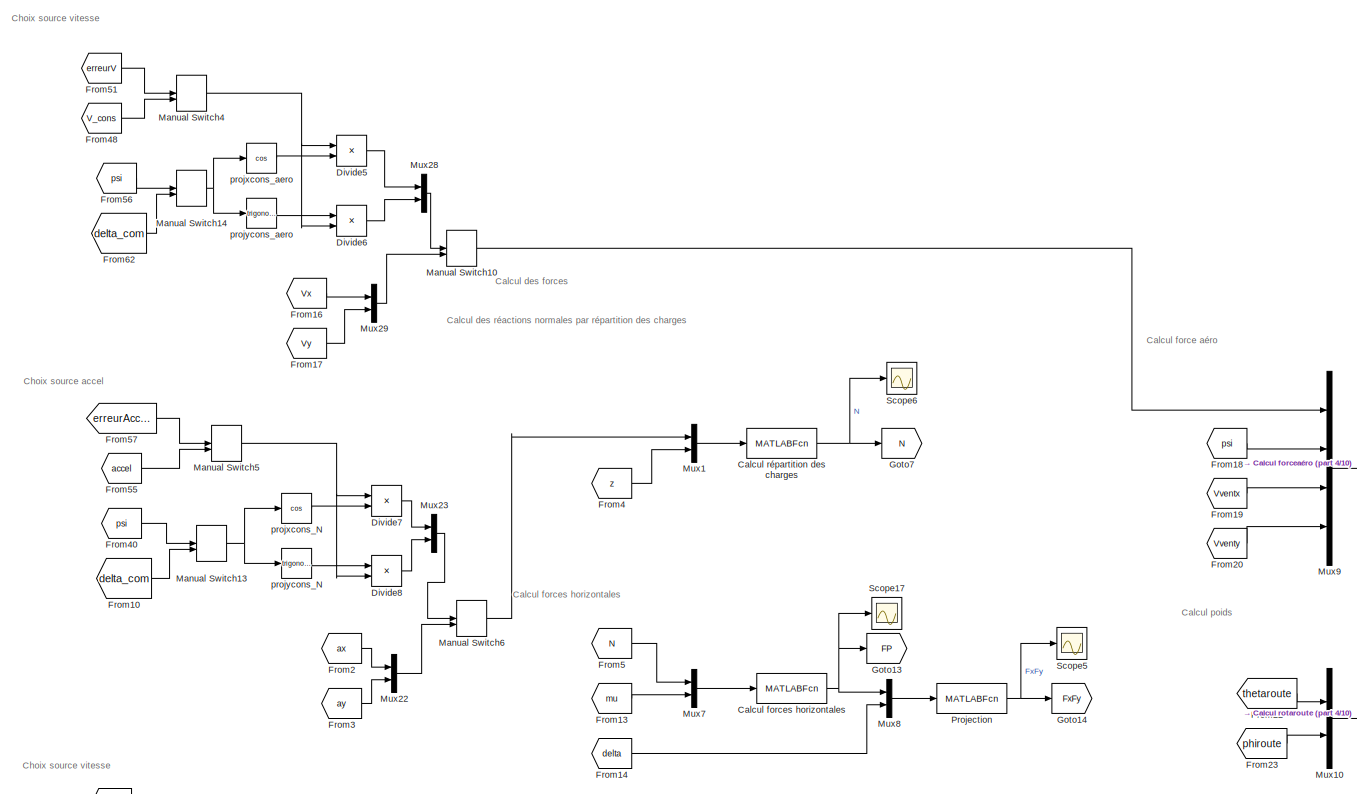
[diagram: root canvas - part 1/10, top right region]
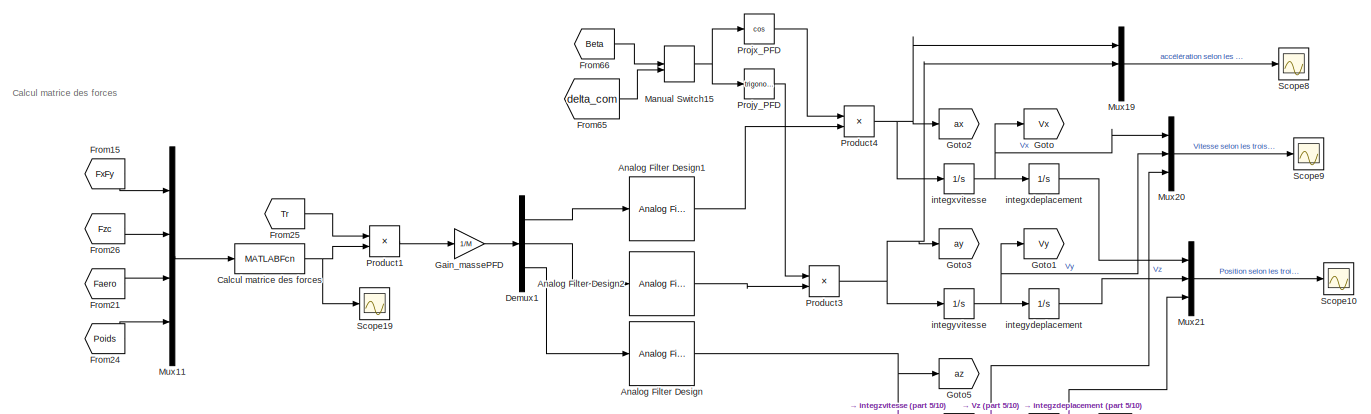
[diagram: root canvas - part 2/10, top left region]
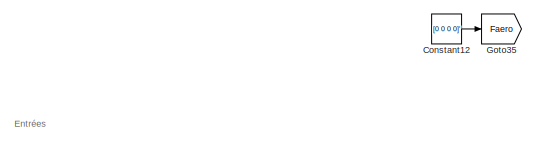
[diagram: root canvas - part 3/10, top left region]
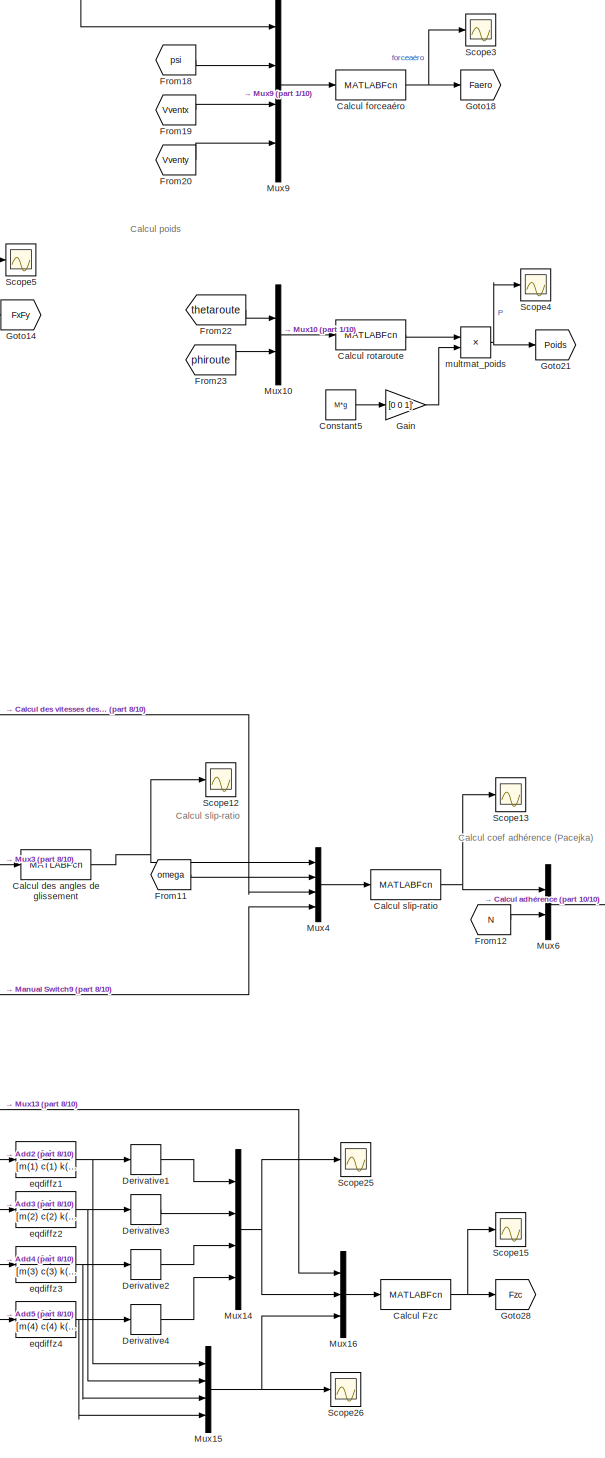
[diagram: root canvas - part 4/10, right side, full height]
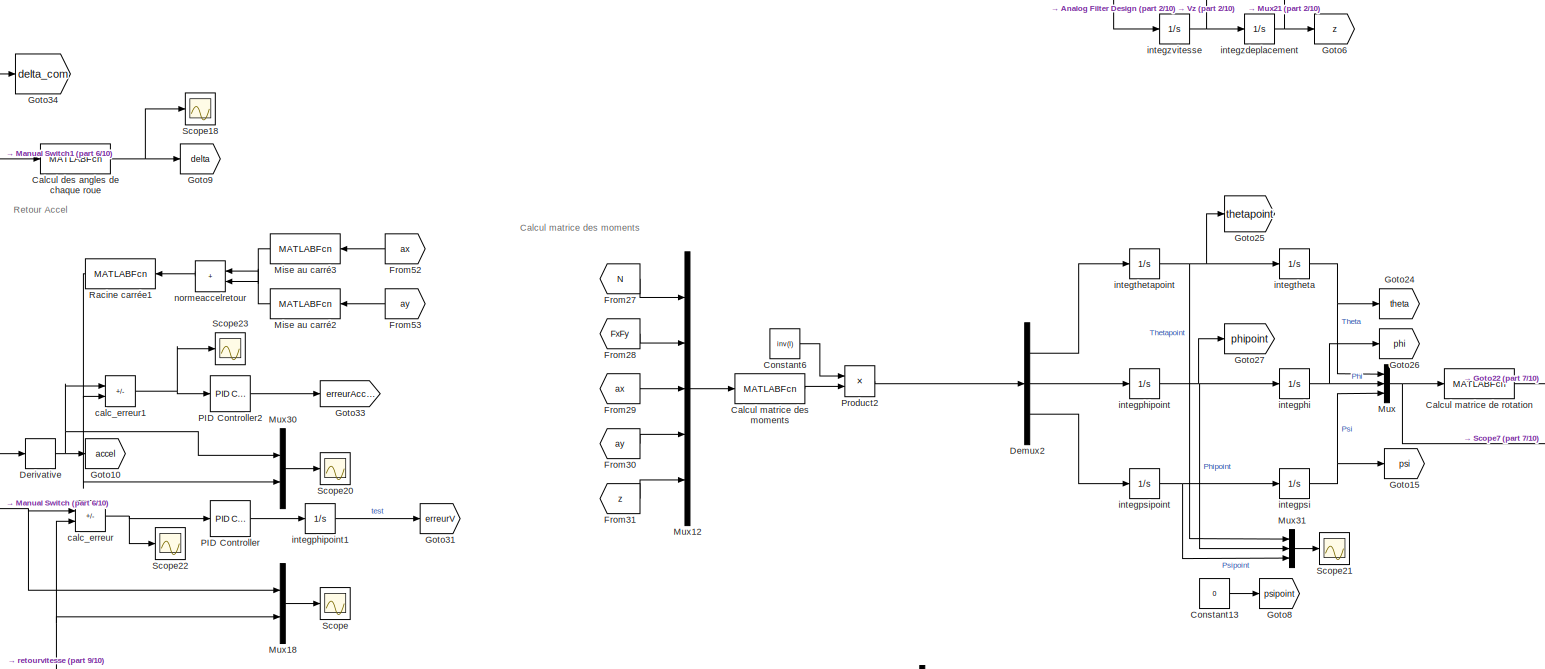
[diagram: root canvas - part 5/10, middle left region]
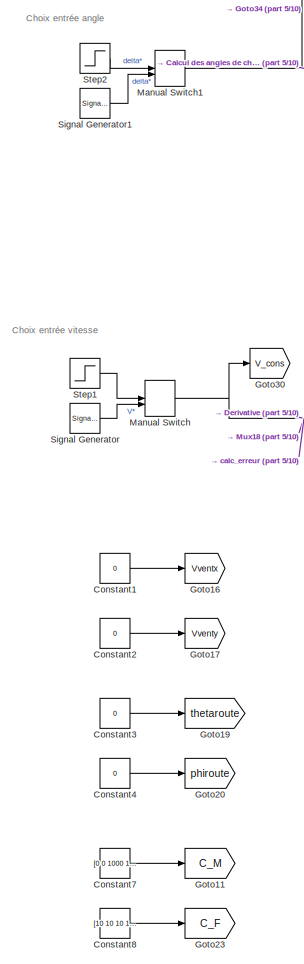
[diagram: root canvas - part 6/10, middle left region]
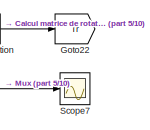
[diagram: root canvas - part 7/10, central region]
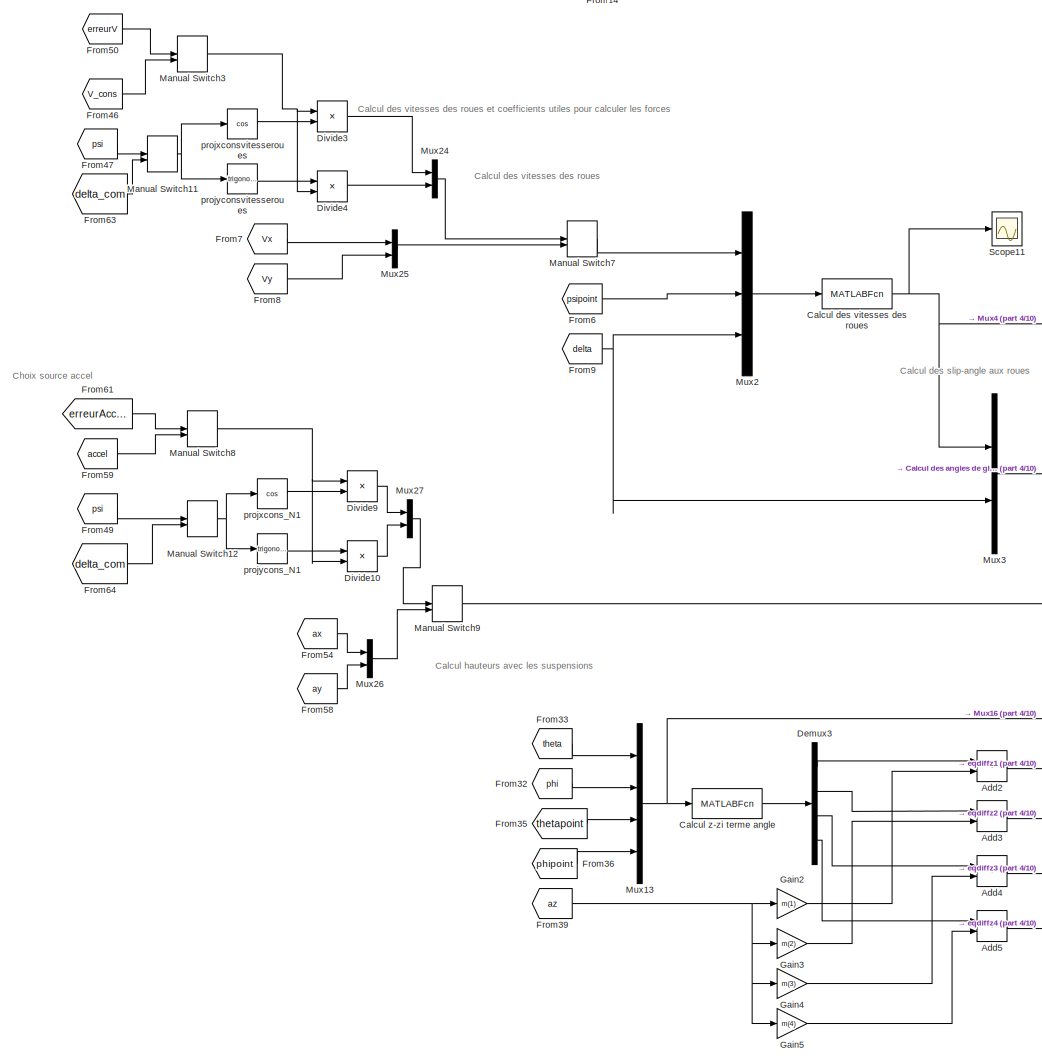
[diagram: root canvas - part 8/10, bottom center region]
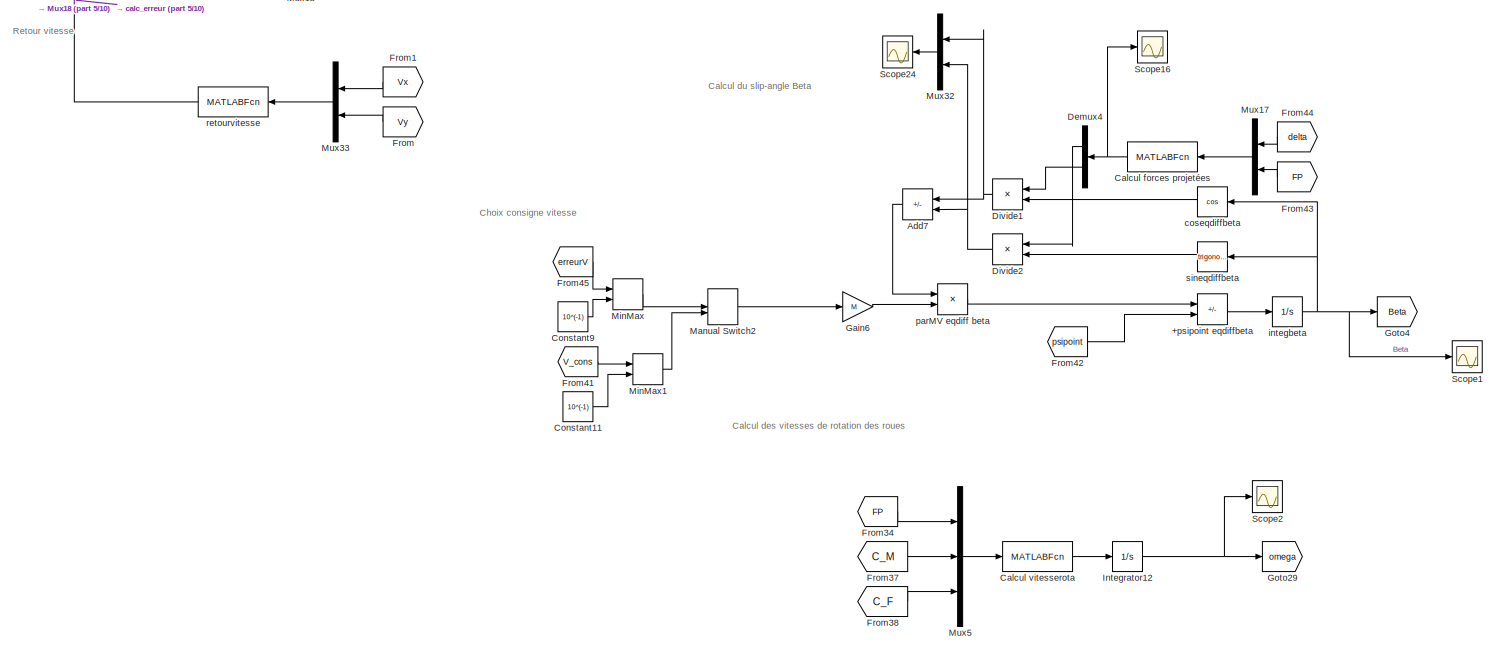
[diagram: root canvas - part 9/10, bottom left region]
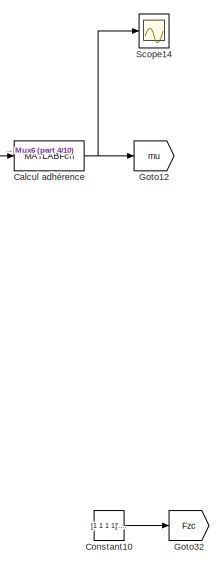
[diagram: root canvas - part 10/10, bottom right region]
MODEL slx_1732bdafeede
KIND model
CONFIG AbsTol = auto
CONFIG EnableMultiTasking = off
CONFIG FixedStep = auto
CONFIG MaxStep = auto
CONFIG MinStep = auto
CONFIG RelTol = 10e-8
CONFIG SampleTimeConstraint = Unconstrained
CONFIG SolverName = VariableStepAuto
CONFIG StartTime = 0.0
CONFIG StopTime = 20
BLOCK [Sum] +psipoint eqdiffbeta
  IconShape = rectangular
  Inputs = +-
  Ports = [2, 1]
BLOCK [Sum] Add2
  IconShape = rectangular
  Ports = [2, 1]
BLOCK [Sum] Add3
  IconShape = rectangular
  Ports = [2, 1]
BLOCK [Sum] Add4
  IconShape = rectangular
  Ports = [2, 1]
BLOCK [Sum] Add5
  IconShape = rectangular
  Ports = [2, 1]
BLOCK [Sum] Add7
  IconShape = rectangular
  Inputs = +-
  NameLocation = top
  Ports = [2, 1]
BLOCK [Reference] Analog Filter Design  REF=dsparch4/Analog
Filter Design
  Ports = [1, 1]
  SourceBlock = dsparch4/Analog\nFilter Design
  SourceProductBaseCode = DS
  SourceType = Analog Filter Design
BLOCK [Reference] Analog Filter Design1  REF=dsparch4/Analog
Filter Design
  Ports = [1, 1]
  SourceBlock = dsparch4/Analog\nFilter Design
  SourceProductBaseCode = DS
  SourceType = Analog Filter Design
BLOCK [Reference] Analog Filter Design2  REF=dsparch4/Analog
Filter Design
  Ports = [1, 1]
  SourceBlock = dsparch4/Analog\nFilter Design
  SourceProductBaseCode = DS
  SourceType = Analog Filter Design
BLOCK [MATLABFcn] Calcul Fzc
  MATLABFcn = calcul_Fcz(u(1),u(2),u(3),u(4),u(5),u(6),u(7),u(8),u(9),u(10),u(11),u(12),k(1),k(2),k(3),k(4),c(1),c(2),c(3),c(4),d_f,l_f,d_r,l_r)
  OutputDimensions = 4
  Ports = [1, 1]
BLOCK [MATLABFcn] Calcul adhérence
  MATLABFcn = calcul_adherence(u(1),u(2),u(3),u(4),u(5),u(6),u(7),u(8),Cte_1,Cte_2,Cte_3,Cte_4,u(9),u(10),u(11),u(12))
  OutputDimensions = 4*2
  Ports = [1, 1]
BLOCK [MATLABFcn] Calcul des angles de chaque roue
  MATLABFcn = calcul_delta(u,L,d_f)
  OutputDimensions = 4
  Ports = [1, 1]
BLOCK [MATLABFcn] Calcul des angles de glissement
  MATLABFcn = calcul_slipangle(u(1),u(2),u(3),u(4),u(5),u(6),u(7),u(8),u(9),u(10),u(11),u(12))
  OutputDimensions = 4
  Ports = [1, 1]
BLOCK [MATLABFcn] Calcul des vitesses des roues
  MATLABFcn = calcul_vitessesroues(u(1),u(2),u(3),u(4),u(5),u(6),u(7),d_f,d_r,l_f,l_r)
  OutputDimensions = 4*2
  Ports = [1, 1]
BLOCK [MATLABFcn] Calcul forceaéro
  Commented = on
  MATLABFcn = calcul_forceaero(u(1),u(2),u(3),u(4),u(5),C_x,A_L,A_S,rho)
  OutputDimensions = 3
  Ports = [1, 1]
BLOCK [MATLABFcn] Calcul forces horizontales
  MATLABFcn = calcul_forces(u(1),u(2),u(3),u(4),u(5),u(6),u(7),u(8),u(9),u(10),u(11),u(12))
  OutputDimensions = 4*2
  Ports = [1, 1]
BLOCK [MATLABFcn] Calcul forces projetées
  MATLABFcn = calcul_forcesprojetees(u(1),u(2),u(3),u(4),u(5),u(6),u(7),u(8),u(9),u(10),u(11),u(12))
  NameLocation = top
  Output1D = off
  OutputDimensions = 2
  Ports = [1, 1]
BLOCK [MATLABFcn] Calcul matrice de rotation
  MATLABFcn = calcul_rotation(u(1),u(2),u(3))
  Output1D = off
  OutputDimensions = [3 3]
  Ports = [1, 1]
BLOCK [MATLABFcn] Calcul matrice des forces
  MATLABFcn = calcul_matriceforces(u(1),u(2),u(3),u(4),u(5),u(6),u(7),u(8),u(9),u(10),u(11),u(12),u(13),u(14),u(15),u(16),u(17),u(18))
  Output1D = off
  OutputDimensions = [3 1]
  Ports = [1, 1]
BLOCK [MATLABFcn] Calcul matrice des moments
  MATLABFcn = calcul_matricemoments(u(1),u(2),u(3),u(4),u(5),u(6),u(7),u(8),u(9),u(10),u(11),u(12),u(13),u(14),u(15),d_f,d_r,M,h,l_f,l_r)
  Output1D = off
  OutputDimensions = [3 1]
  Ports = [1, 1]
BLOCK [MATLABFcn] Calcul rotaroute
  MATLABFcn = calcul_rotaroute(u(1),u(2))
  Output1D = off
  OutputDimensions = [3 3]
  Ports = [1, 1]
BLOCK [MATLABFcn] Calcul répartition des charges
  MATLABFcn = calcul_N(u(1),u(2),u(3),M,L,l_r,h,g)
  OutputDimensions = 4
  Ports = [1, 1]
BLOCK [MATLABFcn] Calcul slip-ratio
  MATLABFcn = calcul_lambda(u(1),u(2),u(3),u(4),R(1),R(2),R(3),R(4),u(5),u(6),u(7),u(8),u(9),u(11),u(13),u(15),u(17))
  OutputDimensions = 4*2
  Ports = [1, 1]
BLOCK [MATLABFcn] Calcul vitesserota
  MATLABFcn = calcul_omega(u(1),u(2),u(3),u(4),u(5),u(6),u(7),u(8),u(9),u(10),u(11),u(12),u(13),u(14),u(15),u(16),R(1),R(2),R(3),R(4),J(1),J(2),J(3),J(4))
  OutputDimensions = 4
  Ports = [1, 1]
BLOCK [MATLABFcn] Calcul z-zi terme angle
  MATLABFcn = calcul_secondterme(u(1),u(2),u(3),u(4),c(1),c(2),c(3),c(4),k(1),k(2),k(3),k(4),d_r,d_f,l_r,l_f)
  OutputDimensions = 4
  Ports = [1, 1]
BLOCK [Constant] Constant1
  Value = 0
BLOCK [Constant] Constant10
  Commented = on
  Value = [1 1 1 1]'.*1000
  VectorParams1D = off
BLOCK [Constant] Constant11
  Value = 10^(-1)
BLOCK [Constant] Constant12
  Value = [0 0 0 0]'
BLOCK [Constant] Constant13
  Value = 0
BLOCK [Constant] Constant2
  Value = 0
BLOCK [Constant] Constant3
  Value = 0
BLOCK [Constant] Constant4
  Value = 0
BLOCK [Constant] Constant5
  Value = M*g
  VectorParams1D = off
BLOCK [Constant] Constant6
  Value = inv(I)
BLOCK [Constant] Constant7
  Value = [0 0 1000 1000]
BLOCK [Constant] Constant8
  Value = [10 10 10 10]
BLOCK [Constant] Constant9
  Value = 10^(-1)
BLOCK [Demux] Demux1
  Outputs = 3
  Ports = [1, 3]
BLOCK [Demux] Demux2
  Outputs = 3
  Ports = [1, 3]
BLOCK [Demux] Demux3
  Ports = [1, 4]
BLOCK [Demux] Demux4
  NameLocation = top
  Outputs = 2
  Ports = [1, 2]
BLOCK [Derivative] Derivative
BLOCK [Derivative] Derivative1
BLOCK [Derivative] Derivative2
BLOCK [Derivative] Derivative3
BLOCK [Derivative] Derivative4
BLOCK [Product] Divide1
  Inputs = **
  NameLocation = top
  Ports = [2, 1]
BLOCK [Product] Divide10
  Inputs = **
  Ports = [2, 1]
BLOCK [Product] Divide2
  Inputs = **
  NameLocation = top
  Ports = [2, 1]
BLOCK [Product] Divide3
  Inputs = **
  Ports = [2, 1]
BLOCK [Product] Divide4
  Inputs = **
  Ports = [2, 1]
BLOCK [Product] Divide5
  Commented = on
  Inputs = **
  Ports = [2, 1]
BLOCK [Product] Divide6
  Commented = on
  Inputs = **
  Ports = [2, 1]
BLOCK [Product] Divide7
  Inputs = **
  Ports = [2, 1]
BLOCK [Product] Divide8
  Inputs = **
  Ports = [2, 1]
BLOCK [Product] Divide9
  Inputs = **
  Ports = [2, 1]
BLOCK [From] From
  GotoTag = Vy
  NameLocation = top
BLOCK [From] From1
  GotoTag = Vx
  NameLocation = top
BLOCK [From] From10
  GotoTag = delta_com
BLOCK [From] From11
  GotoTag = omega
BLOCK [From] From12
  GotoTag = N
BLOCK [From] From13
  GotoTag = mu
BLOCK [From] From14
  GotoTag = delta
BLOCK [From] From15
  GotoTag = FxFy
BLOCK [From] From16
  Commented = on
  GotoTag = Vx
BLOCK [From] From17
  Commented = on
  GotoTag = Vy
BLOCK [From] From18
  Commented = on
  GotoTag = psi
BLOCK [From] From19
  Commented = on
  GotoTag = Vventx
BLOCK [From] From2
  GotoTag = ax
BLOCK [From] From20
  Commented = on
  GotoTag = Vventy
BLOCK [From] From21
  GotoTag = Faero
BLOCK [From] From22
  GotoTag = thetaroute
BLOCK [From] From23
  GotoTag = phiroute
BLOCK [From] From24
  GotoTag = Poids
BLOCK [From] From25
  GotoTag = Tr
BLOCK [From] From26
  GotoTag = Fzc
BLOCK [From] From27
  GotoTag = N
BLOCK [From] From28
  GotoTag = FxFy
BLOCK [From] From29
  GotoTag = ax
BLOCK [From] From3
  GotoTag = ay
BLOCK [From] From30
  GotoTag = ay
BLOCK [From] From31
  GotoTag = z
BLOCK [From] From32
  GotoTag = phi
BLOCK [From] From33
  GotoTag = theta
BLOCK [From] From34
  GotoTag = FP
BLOCK [From] From35
  GotoTag = thetapoint
BLOCK [From] From36
  GotoTag = phipoint
BLOCK [From] From37
  GotoTag = C_M
BLOCK [From] From38
  GotoTag = C_F
BLOCK [From] From39
  GotoTag = az
BLOCK [From] From4
  GotoTag = z
BLOCK [From] From40
  GotoTag = psi
BLOCK [From] From41
  GotoTag = V_cons
BLOCK [From] From42
  GotoTag = psipoint
BLOCK [From] From43
  GotoTag = FP
  NameLocation = top
BLOCK [From] From44
  GotoTag = delta
  NameLocation = top
BLOCK [From] From45
  GotoTag = erreurV
BLOCK [From] From46
  GotoTag = V_cons
BLOCK [From] From47
  GotoTag = psi
BLOCK [From] From48
  Commented = on
  GotoTag = V_cons
BLOCK [From] From49
  GotoTag = psi
BLOCK [From] From5
  GotoTag = N
BLOCK [From] From50
  GotoTag = erreurV
BLOCK [From] From51
  Commented = on
  GotoTag = erreurV
BLOCK [From] From52
  GotoTag = ax
  NameLocation = top
BLOCK [From] From53
  GotoTag = ay
  NameLocation = top
BLOCK [From] From54
  GotoTag = ax
BLOCK [From] From55
  GotoTag = accel
BLOCK [From] From56
  Commented = on
  GotoTag = psi
BLOCK [From] From57
  GotoTag = erreurAccel
BLOCK [From] From58
  GotoTag = ay
BLOCK [From] From59
  GotoTag = accel
BLOCK [From] From6
  GotoTag = psipoint
BLOCK [From] From61
  GotoTag = erreurAccel
BLOCK [From] From62
  Commented = on
  GotoTag = delta_com
BLOCK [From] From63
  GotoTag = delta_com
BLOCK [From] From64
  GotoTag = delta_com
BLOCK [From] From65
  GotoTag = delta_com
BLOCK [From] From66
  GotoTag = Beta
BLOCK [From] From7
  GotoTag = Vx
BLOCK [From] From8
  GotoTag = Vy
BLOCK [From] From9
  GotoTag = delta
BLOCK [Gain] Gain
  Gain = [0 0 1]'
BLOCK [Gain] Gain2
  Gain = m(1)
BLOCK [Gain] Gain3
  Gain = m(2)
BLOCK [Gain] Gain4
  Gain = m(3)
BLOCK [Gain] Gain5
  Gain = m(4)
BLOCK [Gain] Gain6
  Gain = M
BLOCK [Gain] Gain_massePFD
  Gain = 1/M
BLOCK [Goto] Goto
  GotoTag = Vx
BLOCK [Goto] Goto1
  GotoTag = Vy
BLOCK [Goto] Goto10
  GotoTag = accel
BLOCK [Goto] Goto11
  GotoTag = C_M
BLOCK [Goto] Goto12
  GotoTag = mu
BLOCK [Goto] Goto13
  GotoTag = FP
BLOCK [Goto] Goto14
  GotoTag = FxFy
BLOCK [Goto] Goto15
  GotoTag = psi
BLOCK [Goto] Goto16
  GotoTag = Vventx
BLOCK [Goto] Goto17
  GotoTag = Vventy
BLOCK [Goto] Goto18
  Commented = on
  GotoTag = Faero
BLOCK [Goto] Goto19
  GotoTag = thetaroute
BLOCK [Goto] Goto2
  GotoTag = ax
BLOCK [Goto] Goto20
  GotoTag = phiroute
BLOCK [Goto] Goto21
  GotoTag = Poids
BLOCK [Goto] Goto22
  GotoTag = Tr
BLOCK [Goto] Goto23
  GotoTag = C_F
BLOCK [Goto] Goto24
  GotoTag = theta
BLOCK [Goto] Goto25
  GotoTag = thetapoint
BLOCK [Goto] Goto26
  GotoTag = phi
BLOCK [Goto] Goto27
  GotoTag = phipoint
BLOCK [Goto] Goto28
  GotoTag = Fzc
BLOCK [Goto] Goto29
  GotoTag = omega
BLOCK [Goto] Goto3
  GotoTag = ay
BLOCK [Goto] Goto30
  GotoTag = V_cons
BLOCK [Goto] Goto31
  GotoTag = erreurV
BLOCK [Goto] Goto32
  Commented = on
  GotoTag = Fzc
BLOCK [Goto] Goto33
  GotoTag = erreurAccel
BLOCK [Goto] Goto34
  GotoTag = delta_com
BLOCK [Goto] Goto35
  GotoTag = Faero
BLOCK [Goto] Goto4
  GotoTag = Beta
BLOCK [Goto] Goto5
  GotoTag = az
BLOCK [Goto] Goto6
  GotoTag = z
BLOCK [Goto] Goto7
  GotoTag = N
BLOCK [Goto] Goto8
  GotoTag = psipoint
BLOCK [Goto] Goto9
  GotoTag = delta
BLOCK [Integrator] Integrator12
  Ports = [1, 1]
BLOCK [ManualSwitch] Manual Switch
BLOCK [ManualSwitch] Manual Switch1
BLOCK [ManualSwitch] Manual Switch10
  Commented = on
BLOCK [ManualSwitch] Manual Switch11
BLOCK [ManualSwitch] Manual Switch12
BLOCK [ManualSwitch] Manual Switch13
BLOCK [ManualSwitch] Manual Switch14
  Commented = on
BLOCK [ManualSwitch] Manual Switch15
  CurrentSetting = 0
BLOCK [ManualSwitch] Manual Switch2
BLOCK [ManualSwitch] Manual Switch3
BLOCK [ManualSwitch] Manual Switch4
  Commented = on
BLOCK [ManualSwitch] Manual Switch5
BLOCK [ManualSwitch] Manual Switch6
BLOCK [ManualSwitch] Manual Switch7
BLOCK [ManualSwitch] Manual Switch8
BLOCK [ManualSwitch] Manual Switch9
BLOCK [MinMax] MinMax
  Function = max
  Inputs = 2
  Ports = [2, 1]
BLOCK [MinMax] MinMax1
  Function = max
  Inputs = 2
  Ports = [2, 1]
BLOCK [MATLABFcn] Mise au carré2
  MATLABFcn = u^2
  NameLocation = top
  Ports = [1, 1]
BLOCK [MATLABFcn] Mise au carré3
  MATLABFcn = u^2
  NameLocation = top
  Ports = [1, 1]
BLOCK [Mux] Mux
  DisplayOption = bar
  Inputs = 3
  Ports = [3, 1]
BLOCK [Mux] Mux1
  DisplayOption = bar
  Inputs = 2
  Ports = [2, 1]
BLOCK [Mux] Mux10
  DisplayOption = bar
  Inputs = 2
  Ports = [2, 1]
BLOCK [Mux] Mux11
  DisplayOption = bar
  Ports = [4, 1]
BLOCK [Mux] Mux12
  DisplayOption = bar
  Inputs = 5
  Ports = [5, 1]
BLOCK [Mux] Mux13
  DisplayOption = bar
  Ports = [4, 1]
BLOCK [Mux] Mux14
  DisplayOption = bar
  Ports = [4, 1]
BLOCK [Mux] Mux15
  DisplayOption = bar
  Ports = [4, 1]
BLOCK [Mux] Mux16
  DisplayOption = bar
  Inputs = 3
  Ports = [3, 1]
BLOCK [Mux] Mux17
  DisplayOption = bar
  Inputs = 2
  NameLocation = top
  Ports = [2, 1]
BLOCK [Mux] Mux18
  DisplayOption = bar
  Inputs = 2
  Ports = [2, 1]
BLOCK [Mux] Mux19
  DisplayOption = bar
  Inputs = 3
  Ports = [3, 1]
BLOCK [Mux] Mux2
  DisplayOption = bar
  Inputs = 3
  Ports = [3, 1]
BLOCK [Mux] Mux20
  DisplayOption = bar
  Inputs = 3
  Ports = [3, 1]
BLOCK [Mux] Mux21
  DisplayOption = bar
  Inputs = 3
  Ports = [3, 1]
BLOCK [Mux] Mux22
  DisplayOption = bar
  Inputs = 2
  Ports = [2, 1]
BLOCK [Mux] Mux23
  DisplayOption = bar
  Inputs = 2
  Ports = [2, 1]
BLOCK [Mux] Mux24
  DisplayOption = bar
  Inputs = 2
  Ports = [2, 1]
BLOCK [Mux] Mux25
  DisplayOption = bar
  Inputs = 2
  Ports = [2, 1]
BLOCK [Mux] Mux26
  DisplayOption = bar
  Inputs = 2
  Ports = [2, 1]
BLOCK [Mux] Mux27
  DisplayOption = bar
  Inputs = 2
  Ports = [2, 1]
BLOCK [Mux] Mux28
  Commented = on
  DisplayOption = bar
  Inputs = 2
  Ports = [2, 1]
BLOCK [Mux] Mux29
  Commented = on
  DisplayOption = bar
  Inputs = 2
  Ports = [2, 1]
BLOCK [Mux] Mux3
  DisplayOption = bar
  Inputs = 2
  Ports = [2, 1]
BLOCK [Mux] Mux30
  DisplayOption = bar
  Inputs = 2
  Ports = [2, 1]
BLOCK [Mux] Mux31
  DisplayOption = bar
  Inputs = 3
  Ports = [3, 1]
BLOCK [Mux] Mux32
  DisplayOption = bar
  Inputs = 2
  NameLocation = top
  Ports = [2, 1]
BLOCK [Mux] Mux33
  DisplayOption = bar
  Inputs = 2
  NameLocation = top
  Ports = [2, 1]
BLOCK [Mux] Mux4
  DisplayOption = bar
  Ports = [4, 1]
BLOCK [Mux] Mux5
  DisplayOption = bar
  Inputs = 3
  Ports = [3, 1]
BLOCK [Mux] Mux6
  DisplayOption = bar
  Inputs = 2
  Ports = [2, 1]
BLOCK [Mux] Mux7
  DisplayOption = bar
  Inputs = 2
  Ports = [2, 1]
BLOCK [Mux] Mux8
  DisplayOption = bar
  Inputs = 2
  Ports = [2, 1]
BLOCK [Mux] Mux9
  Commented = on
  DisplayOption = bar
  Ports = [4, 1]
BLOCK [Reference] PID Controller  REF=slpidlib/PID Controller
  Ports = [1, 1]
  SourceBlock = slpidlib/PID Controller
  SourceProductBaseCode = SL
  SourceType = PID 1dof
BLOCK [Reference] PID Controller2  REF=slpidlib/PID Controller
  Commented = through
  Ports = [1, 1]
  SourceBlock = slpidlib/PID Controller
  SourceProductBaseCode = SL
  SourceType = PID 1dof
BLOCK [Product] Product1
  Multiplication = Matrix(*)
  Ports = [2, 1]
BLOCK [Product] Product2
  Multiplication = Matrix(*)
  Ports = [2, 1]
BLOCK [Product] Product3
  Ports = [2, 1]
BLOCK [Product] Product4
  Ports = [2, 1]
BLOCK [MATLABFcn] Projection
  MATLABFcn = projection(u(1),u(2),u(3),u(4),u(5),u(6),u(7),u(8),u(9),u(10),u(11),u(12))
  OutputDimensions = 8
  Ports = [1, 1]
BLOCK [Trigonometry] Projx_PFD
  Operator = cos
  Ports = [1, 1]
BLOCK [Trigonometry] Projy_PFD
  Ports = [1, 1]
BLOCK [MATLABFcn] Racine carrée1
  MATLABFcn = u^(0.5)
  NameLocation = top
  Ports = [1, 1]
BLOCK [Scope] Scope
  Floating = off
  NumInputPorts = 1
  Ports = [1]
  ScopeSpecificationString = Simulink.scopes.TimeScopeBlockCfg('CurrentConfiguration', extmgr.ConfigurationSet(extmgr.Configuration('Core','General UI',true),extmgr.Configuration('Core','Source UI',true),extmgr.Configuration('Sources','WiredSimulink',true),extmgr.Configuration('Visuals','Time Domain',true,'SerializedDisplays',{struct('MinYLimReal','-0.75331','MaxYLimReal','6.42745','YLabelReal','','MinYLimMag','0.00000','MaxY...<+1395ch>
BLOCK [Scope] Scope1
  Floating = off
  NumInputPorts = 1
  Ports = [1]
  ScopeSpecificationString = Simulink.scopes.TimeScopeBlockCfg('CurrentConfiguration', extmgr.ConfigurationSet(extmgr.Configuration('Core','General UI',true),extmgr.Configuration('Core','Source UI',true),extmgr.Configuration('Sources','WiredSimulink',true,'DataLoggingVariableName','ScopeData1'),extmgr.Configuration('Visuals','Time Domain',true,'SerializedDisplays',{struct('MinYLimReal','-0.00016','MaxYLimReal','0.00142','YLab...<+1409ch>
BLOCK [Scope] Scope10
  Floating = off
  NumInputPorts = 1
  Ports = [1]
  ScopeSpecificationString = Simulink.scopes.TimeScopeBlockCfg('CurrentConfiguration', extmgr.ConfigurationSet(extmgr.Configuration('Core','General UI',true),extmgr.Configuration('Core','Source UI',true),extmgr.Configuration('Sources','WiredSimulink',true,'DataLoggingVariableName','ScopeData10'),extmgr.Configuration('Visuals','Time Domain',true,'SerializedDisplays',{struct('MinYLimReal','-26.867','MaxYLimReal','30.65988','YLa...<+1532ch>
BLOCK [Scope] Scope11
  Floating = off
  NumInputPorts = 1
  Ports = [1]
  ScopeSpecificationString = Simulink.scopes.TimeScopeBlockCfg('CurrentConfiguration', extmgr.ConfigurationSet(extmgr.Configuration('Core','General UI',true),extmgr.Configuration('Core','Source UI',true),extmgr.Configuration('Sources','WiredSimulink',true,'DataLoggingVariableName','ScopeData11'),extmgr.Configuration('Visuals','Time Domain',true,'SerializedDisplays',{struct('MinYLimReal','-69724.66594','MaxYLimReal','627521.99...<+1927ch>
BLOCK [Scope] Scope12
  Floating = off
  NumInputPorts = 1
  Ports = [1]
  ScopeSpecificationString = Simulink.scopes.TimeScopeBlockCfg('CurrentConfiguration', extmgr.ConfigurationSet(extmgr.Configuration('Core','General UI',true),extmgr.Configuration('Core','Source UI',true),extmgr.Configuration('Sources','WiredSimulink',true,'DataLoggingVariableName','ScopeData12'),extmgr.Configuration('Visuals','Time Domain',true,'SerializedDisplays',{struct('MinYLimReal','-3.92696','MaxYLimReal','3.92677','YLa...<+1665ch>
BLOCK [Scope] Scope13
  Floating = off
  NumInputPorts = 1
  Ports = [1]
  ScopeSpecificationString = Simulink.scopes.TimeScopeBlockCfg('CurrentConfiguration', extmgr.ConfigurationSet(extmgr.Configuration('Core','General UI',true),extmgr.Configuration('Core','Source UI',true),extmgr.Configuration('Sources','WiredSimulink',true,'DataLoggingVariableName','ScopeData13'),extmgr.Configuration('Visuals','Time Domain',true,'SerializedDisplays',{struct('MinYLimReal','-133.81601','MaxYLimReal','118.5939','...<+1799ch>
BLOCK [Scope] Scope14
  Floating = off
  NumInputPorts = 1
  Ports = [1]
  ScopeSpecificationString = Simulink.scopes.TimeScopeBlockCfg('CurrentConfiguration', extmgr.ConfigurationSet(extmgr.Configuration('Core','General UI',true),extmgr.Configuration('Core','Source UI',true),extmgr.Configuration('Sources','WiredSimulink',true,'DataLoggingVariableName','ScopeData14'),extmgr.Configuration('Visuals','Time Domain',true,'SerializedDisplays',{struct('MinYLimReal','0.53485','MaxYLimReal','1.00127','YLab...<+1750ch>
BLOCK [Scope] Scope15
  Floating = off
  NumInputPorts = 1
  Ports = [1]
  ScopeSpecificationString = Simulink.scopes.TimeScopeBlockCfg('CurrentConfiguration', extmgr.ConfigurationSet(extmgr.Configuration('Core','General UI',true),extmgr.Configuration('Core','Source UI',true),extmgr.Configuration('Sources','WiredSimulink',true,'DataLoggingVariableName','ScopeData15'),extmgr.Configuration('Visuals','Time Domain',true,'SerializedDisplays',{struct('MinYLimReal','-68741.32697','MaxYLimReal','79915.773...<+1677ch>
BLOCK [Scope] Scope16
  Floating = off
  NumInputPorts = 1
  Ports = [1]
  ScopeSpecificationString = Simulink.scopes.TimeScopeBlockCfg('CurrentConfiguration', extmgr.ConfigurationSet(extmgr.Configuration('Core','General UI',true),extmgr.Configuration('Core','Source UI',true),extmgr.Configuration('Sources','WiredSimulink',true,'DataLoggingVariableName','ScopeData16'),extmgr.Configuration('Visuals','Time Domain',true,'SerializedDisplays',{struct('MinYLimReal','5116.57954','MaxYLimReal','16805.35457...<+1555ch>
BLOCK [Scope] Scope17
  Floating = off
  NumInputPorts = 1
  Ports = [1]
  ScopeSpecificationString = Simulink.scopes.TimeScopeBlockCfg('CurrentConfiguration', extmgr.ConfigurationSet(extmgr.Configuration('Core','General UI',true),extmgr.Configuration('Core','Source UI',true),extmgr.Configuration('Sources','WiredSimulink',true,'DataLoggingVariableName','ScopeData17'),extmgr.Configuration('Visuals','Time Domain',true,'SerializedDisplays',{struct('MinYLimReal','-1.58076','MaxYLimReal','14.82174','YL...<+1863ch>
BLOCK [Scope] Scope18
  Floating = off
  NumInputPorts = 1
  Ports = [1]
  ScopeSpecificationString = Simulink.scopes.TimeScopeBlockCfg('CurrentConfiguration', extmgr.ConfigurationSet(extmgr.Configuration('Core','General UI',true),extmgr.Configuration('Core','Source UI',true),extmgr.Configuration('Sources','WiredSimulink',true,'DataLoggingVariableName','ScopeData2'),extmgr.Configuration('Visuals','Time Domain',true,'SerializedDisplays',{struct('MinYLimReal','-1.00000','MaxYLimReal','1.00000','YLab...<+1639ch>
BLOCK [Scope] Scope19
  Floating = off
  NumInputPorts = 1
  Ports = [1]
  ScopeSpecificationString = Simulink.scopes.TimeScopeBlockCfg('CurrentConfiguration', extmgr.ConfigurationSet(extmgr.Configuration('Core','General UI',true),extmgr.Configuration('Core','Source UI',true),extmgr.Configuration('Sources','WiredSimulink',true,'DataLoggingVariableName','ScopeData19'),extmgr.Configuration('Visuals','Time Domain',true,'SerializedDisplays',{struct('MinYLimReal','-20934.91065','MaxYLimReal','42815.720...<+1546ch>
BLOCK [Scope] Scope2
  Floating = off
  NumInputPorts = 1
  Ports = [1]
  ScopeSpecificationString = Simulink.scopes.TimeScopeBlockCfg('CurrentConfiguration', extmgr.ConfigurationSet(extmgr.Configuration('Core','General UI',true),extmgr.Configuration('Core','Source UI',true),extmgr.Configuration('Sources','WiredSimulink',true,'DataLoggingVariableName','ScopeData2'),extmgr.Configuration('Visuals','Time Domain',true,'SerializedDisplays',{struct('MinYLimReal','-2713.02767','MaxYLimReal','22287.458',...<+1577ch>
BLOCK [Scope] Scope20
  Floating = off
  NumInputPorts = 1
  Ports = [1]
  ScopeSpecificationString = Simulink.scopes.TimeScopeBlockCfg('CurrentConfiguration', extmgr.ConfigurationSet(extmgr.Configuration('Core','General UI',true),extmgr.Configuration('Core','Source UI',true),extmgr.Configuration('Sources','WiredSimulink',true,'DataLoggingVariableName','ScopeData1'),extmgr.Configuration('Visuals','Time Domain',true,'SerializedDisplays',{struct('MinYLimReal','-7.4531','MaxYLimReal','67.07787','YLab...<+1434ch>
BLOCK [Scope] Scope21
  Floating = off
  NumInputPorts = 1
  Ports = [1]
  ScopeSpecificationString = Simulink.scopes.TimeScopeBlockCfg('CurrentConfiguration', extmgr.ConfigurationSet(extmgr.Configuration('Core','General UI',true),extmgr.Configuration('Core','Source UI',true),extmgr.Configuration('Sources','WiredSimulink',true,'DataLoggingVariableName','ScopeData3'),extmgr.Configuration('Visuals','Time Domain',true,'SerializedDisplays',{struct('MinYLimReal','-2309.78172','MaxYLimReal','19590.36407...<+1461ch>
BLOCK [Scope] Scope22
  Floating = off
  NumInputPorts = 1
  Ports = [1]
  ScopeSpecificationString = Simulink.scopes.TimeScopeBlockCfg('CurrentConfiguration', extmgr.ConfigurationSet(extmgr.Configuration('Core','General UI',true),extmgr.Configuration('Core','Source UI',true),extmgr.Configuration('Sources','WiredSimulink',true,'DataLoggingVariableName','ScopeData1'),extmgr.Configuration('Visuals','Time Domain',true,'SerializedDisplays',{struct('MinYLimReal','16.18242','MaxYLimReal','16.72047','YLa...<+1422ch>
BLOCK [Scope] Scope23
  Floating = off
  NumInputPorts = 1
  Ports = [1]
  ScopeSpecificationString = Simulink.scopes.TimeScopeBlockCfg('CurrentConfiguration', extmgr.ConfigurationSet(extmgr.Configuration('Core','General UI',true),extmgr.Configuration('Core','Source UI',true),extmgr.Configuration('Sources','WiredSimulink',true,'DataLoggingVariableName','ScopeData2'),extmgr.Configuration('Visuals','Time Domain',true,'SerializedDisplays',{struct('MinYLimReal','-12.42372','MaxYLimReal','1.38041','YLa...<+1421ch>
BLOCK [Scope] Scope24
  Floating = off
  NameLocation = top
  NumInputPorts = 1
  Ports = [1]
  ScopeSpecificationString = Simulink.scopes.TimeScopeBlockCfg('CurrentConfiguration', extmgr.ConfigurationSet(extmgr.Configuration('Core','General UI',true),extmgr.Configuration('Core','Source UI',true),extmgr.Configuration('Sources','WiredSimulink',true,'DataLoggingVariableName','ScopeData3'),extmgr.Configuration('Visuals','Time Domain',true,'SerializedDisplays',{struct('MinYLimReal','-12579.78555','MaxYLimReal','12541.1105...<+1495ch>
BLOCK [Scope] Scope25
  Floating = off
  NumInputPorts = 1
  Ports = [1]
  ScopeSpecificationString = Simulink.scopes.TimeScopeBlockCfg('CurrentConfiguration', extmgr.ConfigurationSet(extmgr.Configuration('Core','General UI',true),extmgr.Configuration('Core','Source UI',true),extmgr.Configuration('Sources','WiredSimulink',true,'DataLoggingVariableName','ScopeData1'),extmgr.Configuration('Visuals','Time Domain',true,'SerializedDisplays',{struct('MinYLimReal','-67.49913','MaxYLimReal','67.5266','YLa...<+1644ch>
BLOCK [Scope] Scope26
  Floating = off
  NumInputPorts = 1
  Ports = [1]
  ScopeSpecificationString = Simulink.scopes.TimeScopeBlockCfg('CurrentConfiguration', extmgr.ConfigurationSet(extmgr.Configuration('Core','General UI',true),extmgr.Configuration('Core','Source UI',true),extmgr.Configuration('Sources','WiredSimulink',true,'DataLoggingVariableName','ScopeData2'),extmgr.Configuration('Visuals','Time Domain',true,'SerializedDisplays',{struct('MinYLimReal','-1.4921','MaxYLimReal','1.56415','YLabe...<+1628ch>
BLOCK [Scope] Scope3
  Commented = on
  Floating = off
  NumInputPorts = 1
  Ports = [1]
  ScopeSpecificationString = Simulink.scopes.TimeScopeBlockCfg('CurrentConfiguration', extmgr.ConfigurationSet(extmgr.Configuration('Core','General UI',true),extmgr.Configuration('Core','Source UI',true),extmgr.Configuration('Sources','WiredSimulink',true,'DataLoggingVariableName','ScopeData3'),extmgr.Configuration('Visuals','Time Domain',true,'SerializedDisplays',{struct('MinYLimReal','-368.07306','MaxYLimReal','40.89701','Y...<+1522ch>
BLOCK [Scope] Scope4
  Floating = off
  NumInputPorts = 1
  Ports = [1]
  ScopeSpecificationString = Simulink.scopes.TimeScopeBlockCfg('CurrentConfiguration', extmgr.ConfigurationSet(extmgr.Configuration('Core','General UI',true),extmgr.Configuration('Core','Source UI',true),extmgr.Configuration('Sources','WiredSimulink',true,'DataLoggingVariableName','ScopeData4'),extmgr.Configuration('Visuals','Time Domain',true,'SerializedDisplays',{struct('MinYLimReal','-490.5','MaxYLimReal','4414.5','YLabelR...<+1443ch>
BLOCK [Scope] Scope5
  Floating = off
  NumInputPorts = 1
  Ports = [1]
  ScopeSpecificationString = Simulink.scopes.TimeScopeBlockCfg('CurrentConfiguration', extmgr.ConfigurationSet(extmgr.Configuration('Core','General UI',true),extmgr.Configuration('Core','Source UI',true),extmgr.Configuration('Sources','WiredSimulink',true,'DataLoggingVariableName','ScopeData5'),extmgr.Configuration('Visuals','Time Domain',true,'SerializedDisplays',{struct('MinYLimReal','-7108282841670.46094','MaxYLimReal','18...<+1774ch>
BLOCK [Scope] Scope6
  Floating = off
  NumInputPorts = 1
  Ports = [1]
  ScopeSpecificationString = Simulink.scopes.TimeScopeBlockCfg('CurrentConfiguration', extmgr.ConfigurationSet(extmgr.Configuration('Core','General UI',true),extmgr.Configuration('Core','Source UI',true),extmgr.Configuration('Sources','WiredSimulink',true,'DataLoggingVariableName','ScopeData6'),extmgr.Configuration('Visuals','Time Domain',true,'SerializedDisplays',{struct('MinYLimReal','3506.69416','MaxYLimReal','4360.71541',...<+1564ch>
BLOCK [Scope] Scope7
  Floating = off
  NumInputPorts = 1
  Ports = [1]
  ScopeSpecificationString = Simulink.scopes.TimeScopeBlockCfg('CurrentConfiguration', extmgr.ConfigurationSet(extmgr.Configuration('Core','General UI',true),extmgr.Configuration('Core','Source UI',true),extmgr.Configuration('Sources','WiredSimulink',true,'DataLoggingVariableName','ScopeData7'),extmgr.Configuration('Visuals','Time Domain',true,'SerializedDisplays',{struct('MinYLimReal','-21111.88425','MaxYLimReal','34573.7956...<+1545ch>
BLOCK [Scope] Scope8
  Floating = off
  NumInputPorts = 1
  Ports = [1]
  ScopeSpecificationString = Simulink.scopes.TimeScopeBlockCfg('CurrentConfiguration', extmgr.ConfigurationSet(extmgr.Configuration('Core','General UI',true),extmgr.Configuration('Core','Source UI',true),extmgr.Configuration('Sources','WiredSimulink',true,'DataLoggingVariableName','ScopeData8'),extmgr.Configuration('Visuals','Time Domain',true,'SerializedDisplays',{struct('MinYLimReal','-12.22839','MaxYLimReal','44.17664','YL...<+1615ch>
BLOCK [Scope] Scope9
  Floating = off
  NumInputPorts = 1
  Ports = [1]
  ScopeSpecificationString = Simulink.scopes.TimeScopeBlockCfg('CurrentConfiguration', extmgr.ConfigurationSet(extmgr.Configuration('Core','General UI',true),extmgr.Configuration('Core','Source UI',true),extmgr.Configuration('Sources','WiredSimulink',true,'DataLoggingVariableName','ScopeData9'),extmgr.Configuration('Visuals','Time Domain',true,'SerializedDisplays',{struct('MinYLimReal','-6.10623','MaxYLimReal','7.02222','YLab...<+1501ch>
BLOCK [SignalGenerator] Signal Generator
  Frequency = 0.1
  Ports = [0, 1]
  Units = rad/sec
BLOCK [SignalGenerator] Signal Generator1
  Frequency = 0.01
  Ports = [0, 1]
  Units = rad/sec
BLOCK [Step] Step1
  After = 10/3.6
  SampleTime = 0
  Time = 0
BLOCK [Step] Step2
  After = 0
  SampleTime = 0
  Time = 0
BLOCK [Sum] calc_erreur
  IconShape = rectangular
  Inputs = +-
  Ports = [2, 1]
BLOCK [Sum] calc_erreur1
  IconShape = rectangular
  Inputs = +-
  Ports = [2, 1]
BLOCK [Trigonometry] coseqdiffbeta
  NameLocation = top
  Operator = cos
  Ports = [1, 1]
BLOCK [TransferFcn] eqdiffz1
  Denominator = [m(1) c(1) k(1)]
BLOCK [TransferFcn] eqdiffz2
  Denominator = [m(2) c(2) k(2)]
BLOCK [TransferFcn] eqdiffz3
  Denominator = [m(3) c(3) k(3)]
BLOCK [TransferFcn] eqdiffz4
  Denominator = [m(4) c(4) k(4)]
BLOCK [Integrator] integbeta
  Ports = [1, 1]
BLOCK [Integrator] integphi
  Ports = [1, 1]
BLOCK [Integrator] integphipoint
  Ports = [1, 1]
BLOCK [Integrator] integphipoint1
  Ports = [1, 1]
BLOCK [Integrator] integpsi
  Ports = [1, 1]
BLOCK [Integrator] integpsipoint
  Ports = [1, 1]
BLOCK [Integrator] integtheta
  Ports = [1, 1]
BLOCK [Integrator] integthetapoint
  InitialCondition = 0.01
  Ports = [1, 1]
BLOCK [Integrator] integxdeplacement
  Ports = [1, 1]
BLOCK [Integrator] integxvitesse
  Ports = [1, 1]
BLOCK [Integrator] integydeplacement
  Ports = [1, 1]
BLOCK [Integrator] integyvitesse
  Ports = [1, 1]
BLOCK [Integrator] integzdeplacement
  Ports = [1, 1]
BLOCK [Integrator] integzvitesse
  Ports = [1, 1]
BLOCK [Product] multmat_poids
  Multiplication = Matrix(*)
  Ports = [2, 1]
BLOCK [Sum] normeaccelretour
  IconShape = rectangular
  NameLocation = top
  Ports = [2, 1]
BLOCK [Product] parMV eqdiff beta
  Inputs = */
  Ports = [2, 1]
BLOCK [Trigonometry] projxcons_N
  Operator = cos
  Ports = [1, 1]
BLOCK [Trigonometry] projxcons_N1
  Operator = cos
  Ports = [1, 1]
BLOCK [Trigonometry] projxcons_aero
  Commented = on
  Operator = cos
  Ports = [1, 1]
BLOCK [Trigonometry] projxconsvitesseroues
  Operator = cos
  Ports = [1, 1]
BLOCK [Trigonometry] projycons_N
  Ports = [1, 1]
BLOCK [Trigonometry] projycons_N1
  Ports = [1, 1]
BLOCK [Trigonometry] projycons_aero
  Commented = on
  Ports = [1, 1]
BLOCK [Trigonometry] projyconsvitesseroues
  Ports = [1, 1]
BLOCK [MATLABFcn] retourvitesse
  MATLABFcn = calcul_retourvitesse(u(1),u(2))
  NameLocation = top
  OutputDimensions = 1
  Ports = [1, 1]
BLOCK [Trigonometry] sineqdiffbeta
  NameLocation = top
  Ports = [1, 1]
ANNOTATION (root): Calcul coef adhérence (Pacejka)
ANNOTATION (root): Calcul des forces
ANNOTATION (root): Calcul des réactions normales par répartition des charges
ANNOTATION (root): Calcul des slip-angle aux roues
ANNOTATION (root): Calcul des vitesses de rotation des roues
ANNOTATION (root): Calcul des vitesses des roues
ANNOTATION (root): Calcul des vitesses des roues et coefficients utiles pour calculer les forces
ANNOTATION (root): Calcul du slip-angle Beta
ANNOTATION (root): Calcul force aéro
ANNOTATION (root): Calcul forces horizontales
ANNOTATION (root): Calcul hauteurs avec les suspensions
ANNOTATION (root): Calcul matrice des forces
ANNOTATION (root): Calcul matrice des moments
ANNOTATION (root): Calcul poids
ANNOTATION (root): Calcul slip-ratio
ANNOTATION (root): Choix consigne vitesse
ANNOTATION (root): Choix entrée angle
ANNOTATION (root): Choix entrée vitesse
ANNOTATION (root): Choix source accel
ANNOTATION (root): Choix source vitesse
ANNOTATION (root): Entrées
ANNOTATION (root): Retour Accel
ANNOTATION (root): Retour vitesse
LINE +psipoint eqdiffbeta:1 -> integbeta:1
LINE Add2:1 -> eqdiffz1:1
LINE Add3:1 -> eqdiffz2:1
LINE Add4:1 -> eqdiffz3:1
LINE Add5:1 -> eqdiffz4:1
LINE Add7:1 -> parMV eqdiff beta:1
LINE Analog Filter Design1:1 -> Product4:2
LINE Analog Filter Design2:1 -> Product3:2
NET Analog Filter Design:1 -> Goto5:1, integzvitesse:1
NET Calcul Fzc:1 -> Goto28:1, Scope15:1
NET Calcul adhérence:1 -> Goto12:1, Scope14:1
NET Calcul des angles de chaque roue:1 -> Goto9:1, Scope18:1
NET Calcul des angles de glissement:1 -> Mux4:1, Scope12:1
NET Calcul des vitesses des roues:1 -> Mux3:1, Mux4:3, Scope11:1
NET Calcul forceaéro:1 -> Goto18:1, Scope3:1
NET Calcul forces horizontales:1 -> Goto13:1, Mux8:1, Scope17:1
NET Calcul forces projetées:1 -> Demux4:1, Scope16:1
LINE Calcul matrice de rotation:1 -> Goto22:1
NET Calcul matrice des forces:1 -> Product1:2, Scope19:1
LINE Calcul matrice des moments:1 -> Product2:2
LINE Calcul rotaroute:1 -> multmat_poids:1
NET Calcul répartition des charges:1 -> Goto7:1, Scope6:1
NET Calcul slip-ratio:1 -> Mux6:1, Scope13:1
LINE Calcul vitesserota:1 -> Integrator12:1
LINE Calcul z-zi terme angle:1 -> Demux3:1
LINE Constant10:1 -> Goto32:1
LINE Constant11:1 -> MinMax1:2
LINE Constant12:1 -> Goto35:1
LINE Constant13:1 -> Goto8:1
LINE Constant1:1 -> Goto16:1
LINE Constant2:1 -> Goto17:1
LINE Constant3:1 -> Goto19:1
LINE Constant4:1 -> Goto20:1
LINE Constant5:1 -> Gain:1
LINE Constant6:1 -> Product2:1
LINE Constant7:1 -> Goto11:1
LINE Constant8:1 -> Goto23:1
LINE Constant9:1 -> MinMax:2
LINE Demux1:1 -> Analog Filter Design1:1
LINE Demux1:2 -> Analog Filter Design2:1
LINE Demux1:3 -> Analog Filter Design:1
LINE Demux2:1 -> integthetapoint:1
LINE Demux2:2 -> integphipoint:1
LINE Demux2:3 -> integpsipoint:1
LINE Demux3:1 -> Add2:1
LINE Demux3:2 -> Add3:1
LINE Demux3:3 -> Add4:1
LINE Demux3:4 -> Add5:1
LINE Demux4:1 -> Divide2:1
LINE Demux4:2 -> Divide1:1
LINE Derivative1:1 -> Mux14:1
LINE Derivative2:1 -> Mux14:3
LINE Derivative3:1 -> Mux14:2
LINE Derivative4:1 -> Mux14:4
NET Derivative:1 -> Goto10:1, Mux30:1, calc_erreur1:1
LINE Divide10:1 -> Mux27:2
NET Divide1:1 -> Add7:1, Mux32:1
NET Divide2:1 -> Add7:2, Mux32:2
LINE Divide3:1 -> Mux24:1
LINE Divide4:1 -> Mux24:2
LINE Divide5:1 -> Mux28:1
LINE Divide6:1 -> Mux28:2
LINE Divide7:1 -> Mux23:1
LINE Divide8:1 -> Mux23:2
LINE Divide9:1 -> Mux27:1
LINE From10:1 -> Manual Switch13:2
LINE From11:1 -> Mux4:2
LINE From12:1 -> Mux6:2
LINE From13:1 -> Mux7:2
LINE From14:1 -> Mux8:2
LINE From15:1 -> Mux11:1
LINE From16:1 -> Mux29:1
LINE From17:1 -> Mux29:2
LINE From18:1 -> Mux9:2
LINE From19:1 -> Mux9:3
LINE From1:1 -> Mux33:1
LINE From20:1 -> Mux9:4
LINE From21:1 -> Mux11:3
LINE From22:1 -> Mux10:1
LINE From23:1 -> Mux10:2
LINE From24:1 -> Mux11:4
LINE From25:1 -> Product1:1
LINE From26:1 -> Mux11:2
LINE From27:1 -> Mux12:1
LINE From28:1 -> Mux12:2
LINE From29:1 -> Mux12:3
LINE From2:1 -> Mux22:1
LINE From30:1 -> Mux12:4
LINE From31:1 -> Mux12:5
LINE From32:1 -> Mux13:2
LINE From33:1 -> Mux13:1
LINE From34:1 -> Mux5:1
LINE From35:1 -> Mux13:3
LINE From36:1 -> Mux13:4
LINE From37:1 -> Mux5:2
LINE From38:1 -> Mux5:3
NET From39:1 -> Gain2:1, Gain3:1, Gain4:1, Gain5:1
LINE From3:1 -> Mux22:2
LINE From40:1 -> Manual Switch13:1
LINE From41:1 -> MinMax1:1
LINE From42:1 -> +psipoint eqdiffbeta:2
LINE From43:1 -> Mux17:2
LINE From44:1 -> Mux17:1
LINE From45:1 -> MinMax:1
LINE From46:1 -> Manual Switch3:2
LINE From47:1 -> Manual Switch11:1
LINE From48:1 -> Manual Switch4:2
LINE From49:1 -> Manual Switch12:1
LINE From4:1 -> Mux1:2
LINE From50:1 -> Manual Switch3:1
LINE From51:1 -> Manual Switch4:1
LINE From52:1 -> Mise au carré3:1
LINE From53:1 -> Mise au carré2:1
LINE From54:1 -> Mux26:1
LINE From55:1 -> Manual Switch5:2
LINE From56:1 -> Manual Switch14:1
LINE From57:1 -> Manual Switch5:1
LINE From58:1 -> Mux26:2
LINE From59:1 -> Manual Switch8:2
LINE From5:1 -> Mux7:1
LINE From61:1 -> Manual Switch8:1
LINE From62:1 -> Manual Switch14:2
LINE From63:1 -> Manual Switch11:2
LINE From64:1 -> Manual Switch12:2
LINE From65:1 -> Manual Switch15:2
LINE From66:1 -> Manual Switch15:1
LINE From6:1 -> Mux2:2
LINE From7:1 -> Mux25:1
LINE From8:1 -> Mux25:2
NET From9:1 -> Mux2:3, Mux3:2
LINE From:1 -> Mux33:2
LINE Gain2:1 -> Add2:2
LINE Gain3:1 -> Add3:2
LINE Gain4:1 -> Add4:2
LINE Gain5:1 -> Add5:2
LINE Gain6:1 -> parMV eqdiff beta:2
LINE Gain:1 -> multmat_poids:2
LINE Gain_massePFD:1 -> Demux1:1
NET Integrator12:1 -> Goto29:1, Scope2:1
LINE Manual Switch10:1 -> Mux9:1
NET Manual Switch11:1 -> projxconsvitesseroues:1, projyconsvitesseroues:1
NET Manual Switch12:1 -> projxcons_N1:1, projycons_N1:1
NET Manual Switch13:1 -> projxcons_N:1, projycons_N:1
NET Manual Switch14:1 -> projxcons_aero:1, projycons_aero:1
NET Manual Switch15:1 -> Projx_PFD:1, Projy_PFD:1
NET Manual Switch1:1 -> Calcul des angles de chaque roue:1, Goto34:1
LINE Manual Switch2:1 -> Gain6:1
NET Manual Switch3:1 -> Divide3:1, Divide4:2
NET Manual Switch4:1 -> Divide5:1, Divide6:2
NET Manual Switch5:1 -> Divide7:1, Divide8:2
LINE Manual Switch6:1 -> Mux1:1
LINE Manual Switch7:1 -> Mux2:1
NET Manual Switch8:1 -> Divide10:2, Divide9:1
LINE Manual Switch9:1 -> Mux4:4
NET Manual Switch:1 -> Derivative:1, Goto30:1, Mux18:1, calc_erreur:1
LINE MinMax1:1 -> Manual Switch2:2
LINE MinMax:1 -> Manual Switch2:1
LINE Mise au carré2:1 -> normeaccelretour:1
LINE Mise au carré3:1 -> normeaccelretour:2
LINE Mux10:1 -> Calcul rotaroute:1
LINE Mux11:1 -> Calcul matrice des forces:1
LINE Mux12:1 -> Calcul matrice des moments:1
NET Mux13:1 -> Calcul z-zi terme angle:1, Mux16:1
NET Mux14:1 -> Mux16:2, Scope25:1
NET Mux15:1 -> Mux16:3, Scope26:1
LINE Mux16:1 -> Calcul Fzc:1
LINE Mux17:1 -> Calcul forces projetées:1
LINE Mux18:1 -> Scope:1
LINE Mux19:1 -> Scope8:1
LINE Mux1:1 -> Calcul répartition des charges:1
LINE Mux20:1 -> Scope9:1
LINE Mux21:1 -> Scope10:1
LINE Mux22:1 -> Manual Switch6:2
LINE Mux23:1 -> Manual Switch6:1
LINE Mux24:1 -> Manual Switch7:1
LINE Mux25:1 -> Manual Switch7:2
LINE Mux26:1 -> Manual Switch9:2
LINE Mux27:1 -> Manual Switch9:1
LINE Mux28:1 -> Manual Switch10:1
LINE Mux29:1 -> Manual Switch10:2
LINE Mux2:1 -> Calcul des vitesses des roues:1
LINE Mux30:1 -> Scope20:1
LINE Mux31:1 -> Scope21:1
LINE Mux32:1 -> Scope24:1
LINE Mux33:1 -> retourvitesse:1
LINE Mux3:1 -> Calcul des angles de glissement:1
LINE Mux4:1 -> Calcul slip-ratio:1
LINE Mux5:1 -> Calcul vitesserota:1
LINE Mux6:1 -> Calcul adhérence:1
LINE Mux7:1 -> Calcul forces horizontales:1
LINE Mux8:1 -> Projection:1
LINE Mux9:1 -> Calcul forceaéro:1
NET Mux:1 -> Calcul matrice de rotation:1, Scope7:1
LINE PID Controller2:1 -> Goto33:1
LINE PID Controller:1 -> integphipoint1:1
LINE Product1:1 -> Gain_massePFD:1
LINE Product2:1 -> Demux2:1
NET Product3:1 -> Goto3:1, Mux19:2, integyvitesse:1
NET Product4:1 -> Goto2:1, Mux19:1, integxvitesse:1
NET Projection:1 -> Goto14:1, Scope5:1
LINE Projx_PFD:1 -> Product4:1
LINE Projy_PFD:1 -> Product3:1
NET Racine carrée1:1 -> Mux30:2, calc_erreur1:2
LINE Signal Generator1:1 -> Manual Switch1:2
LINE Signal Generator:1 -> Manual Switch:2
LINE Step1:1 -> Manual Switch:1
LINE Step2:1 -> Manual Switch1:1
NET calc_erreur1:1 -> PID Controller2:1, Scope23:1
NET calc_erreur:1 -> PID Controller:1, Scope22:1
LINE coseqdiffbeta:1 -> Divide1:2
NET eqdiffz1:1 -> Derivative1:1, Mux15:1
NET eqdiffz2:1 -> Derivative3:1, Mux15:2
NET eqdiffz3:1 -> Derivative2:1, Mux15:3
NET eqdiffz4:1 -> Derivative4:1, Mux15:4
NET integbeta:1 -> Goto4:1, Scope1:1, coseqdiffbeta:1, sineqdiffbeta:1
NET integphi:1 -> Goto26:1, Mux:2
LINE integphipoint1:1 -> Goto31:1
NET integphipoint:1 -> Goto27:1, Mux31:2, integphi:1
NET integpsi:1 -> Goto15:1, Mux:3
NET integpsipoint:1 -> Mux31:3, integpsi:1
NET integtheta:1 -> Goto24:1, Mux:1
NET integthetapoint:1 -> Goto25:1, Mux31:1, integtheta:1
LINE integxdeplacement:1 -> Mux21:1
NET integxvitesse:1 -> Goto:1, Mux20:1, integxdeplacement:1
LINE integydeplacement:1 -> Mux21:2
NET integyvitesse:1 -> Goto1:1, Mux20:2, integydeplacement:1
NET integzdeplacement:1 -> Goto6:1, Mux21:3
NET integzvitesse:1 -> Mux20:3, integzdeplacement:1
NET multmat_poids:1 -> Goto21:1, Scope4:1
LINE normeaccelretour:1 -> Racine carrée1:1
LINE parMV eqdiff beta:1 -> +psipoint eqdiffbeta:1
LINE projxcons_N1:1 -> Divide9:2
LINE projxcons_N:1 -> Divide7:2
LINE projxcons_aero:1 -> Divide5:2
LINE projxconsvitesseroues:1 -> Divide3:2
LINE projycons_N1:1 -> Divide10:1
LINE projycons_N:1 -> Divide8:1
LINE projycons_aero:1 -> Divide6:1
LINE projyconsvitesseroues:1 -> Divide4:1
NET retourvitesse:1 -> Mux18:2, calc_erreur:2
LINE sineqdiffbeta:1 -> Divide2:2
note: NET lines group one-source signal fan-out (src -> all destinations, sorted); 1:1 wires keep LINE
